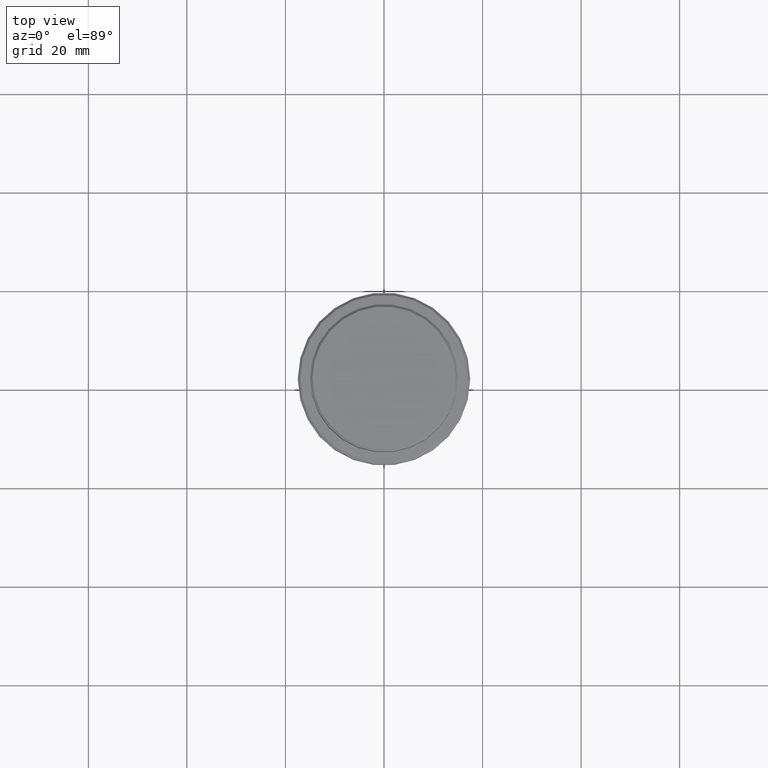
[diagram: clean part render]
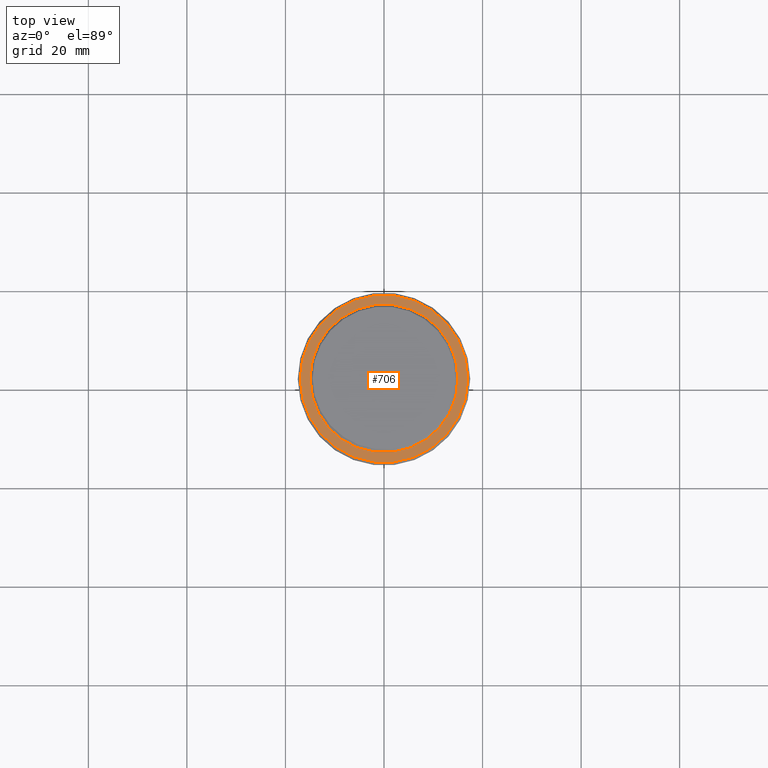
[diagram: same view with one face highlighted and labeled with its STEP entity id]
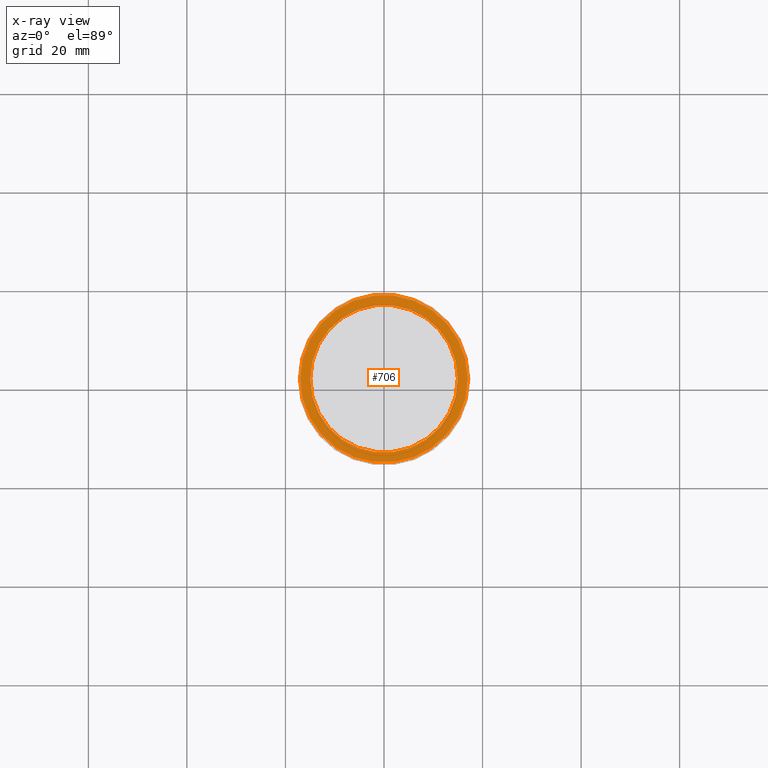
[diagram: x-ray of the same camera — body ghosted, the highlighted face saturated]
A machine part, top view. The second image highlights one B-rep face of the part: STEP entity #706.
The next image is the same camera in x-ray: the body ghosted, the highlighted face saturated — about 0% of this face is hidden behind the body in this view.
In plain terms, the highlighted planar face has unit normal (0, -0, 1).
Its self-contained STEP definition (entity closure, byte-faithful):
#17 = FACE_BOUND ( 'NONE', #960, .T. ) ;
#19 = ORIENTED_EDGE ( 'NONE', *, *, #553, .T. ) ;
#57 = ORIENTED_EDGE ( 'NONE', *, *, #783, .T. ) ;
#59 = DIRECTION ( 'NONE',  ( 1.000000000000000000, 0.000000000000000000, 0.000000000000000000 ) ) ;
#142 = DIRECTION ( 'NONE',  ( 0.000000000000000000, -0.000000000000000000, 1.000000000000000000 ) ) ;
#162 = ORIENTED_EDGE ( 'NONE', *, *, #1234, .T. ) ;
#168 = DIRECTION ( 'NONE',  ( 0.000000000000000000, 0.000000000000000000, -1.000000000000000000 ) ) ;
#192 = VERTEX_POINT ( 'NONE', #1040 ) ;
#203 = CARTESIAN_POINT ( 'NONE',  ( 17.00000000000001421, 2.112515728529185250E-15, -9.000000000000000000 ) ) ;
#287 = CARTESIAN_POINT ( 'NONE',  ( 0.000000000000000000, 0.000000000000000000, -9.000000000000000000 ) ) ;
#443 = CIRCLE ( 'NONE', #774, 14.99999999999999289 ) ;
#469 = FACE_OUTER_BOUND ( 'NONE', #1346, .T. ) ;
#526 = CARTESIAN_POINT ( 'NONE',  ( 0.000000000000000000, 0.000000000000000000, -9.000000000000000000 ) ) ;
#532 = AXIS2_PLACEMENT_3D ( 'NONE', #1259, #1036, #59 ) ;
#553 = EDGE_CURVE ( 'NONE', #848, #632, #1255, .T. ) ;
#624 = DIRECTION ( 'NONE',  ( 1.000000000000000000, 0.000000000000000000, 0.000000000000000000 ) ) ;
#632 = VERTEX_POINT ( 'NONE', #1101 ) ;
#645 = AXIS2_PLACEMENT_3D ( 'NONE', #526, #1394, #1376 ) ;
#680 = DIRECTION ( 'NONE',  ( -0.000000000000000000, -0.000000000000000000, 1.000000000000000000 ) ) ;
#706 = ADVANCED_FACE ( 'NONE', ( #469, #17 ), #903, .T. ) ;
#774 = AXIS2_PLACEMENT_3D ( 'NONE', #287, #168, #624 ) ;
#775 = CIRCLE ( 'NONE', #532, 14.99999999999999289 ) ;
#783 = EDGE_CURVE ( 'NONE', #192, #1237, #443, .T. ) ;
#840 = ORIENTED_EDGE ( 'NONE', *, *, #1276, .T. ) ;
#848 = VERTEX_POINT ( 'NONE', #203 ) ;
#850 = AXIS2_PLACEMENT_3D ( 'NONE', #1014, #142, #1331 ) ;
#903 = PLANE ( 'NONE',  #850 ) ;
#960 = EDGE_LOOP ( 'NONE', ( #840, #57 ) ) ;
#1007 = CARTESIAN_POINT ( 'NONE',  ( 14.99999999999999289, 0.000000000000000000, -9.000000000000000000 ) ) ;
#1014 = CARTESIAN_POINT ( 'NONE',  ( 0.000000000000000000, 14.49999999999999467, -9.000000000000000000 ) ) ;
#1036 = DIRECTION ( 'NONE',  ( 0.000000000000000000, 0.000000000000000000, -1.000000000000000000 ) ) ;
#1040 = CARTESIAN_POINT ( 'NONE',  ( -14.99999999999999289, 1.836970198721028800E-15, -9.000000000000000000 ) ) ;
#1101 = CARTESIAN_POINT ( 'NONE',  ( -17.00000000000001421, 0.000000000000000000, -9.000000000000000000 ) ) ;
#1111 = DIRECTION ( 'NONE',  ( 1.000000000000000000, 0.000000000000000000, 0.000000000000000000 ) ) ;
#1136 = CIRCLE ( 'NONE', #1185, 17.00000000000001421 ) ;
#1185 = AXIS2_PLACEMENT_3D ( 'NONE', #1217, #680, #1111 ) ;
#1217 = CARTESIAN_POINT ( 'NONE',  ( 0.000000000000000000, 0.000000000000000000, -9.000000000000000000 ) ) ;
#1234 = EDGE_CURVE ( 'NONE', #632, #848, #1136, .T. ) ;
#1237 = VERTEX_POINT ( 'NONE', #1007 ) ;
#1255 = CIRCLE ( 'NONE', #645, 17.00000000000001421 ) ;
#1259 = CARTESIAN_POINT ( 'NONE',  ( 0.000000000000000000, 0.000000000000000000, -9.000000000000000000 ) ) ;
#1276 = EDGE_CURVE ( 'NONE', #1237, #192, #775, .T. ) ;
#1331 = DIRECTION ( 'NONE',  ( 1.000000000000000000, 0.000000000000000000, 0.000000000000000000 ) ) ;
#1346 = EDGE_LOOP ( 'NONE', ( #162, #19 ) ) ;
#1376 = DIRECTION ( 'NONE',  ( 1.000000000000000000, 0.000000000000000000, 0.000000000000000000 ) ) ;
#1394 = DIRECTION ( 'NONE',  ( -0.000000000000000000, -0.000000000000000000, 1.000000000000000000 ) ) ;